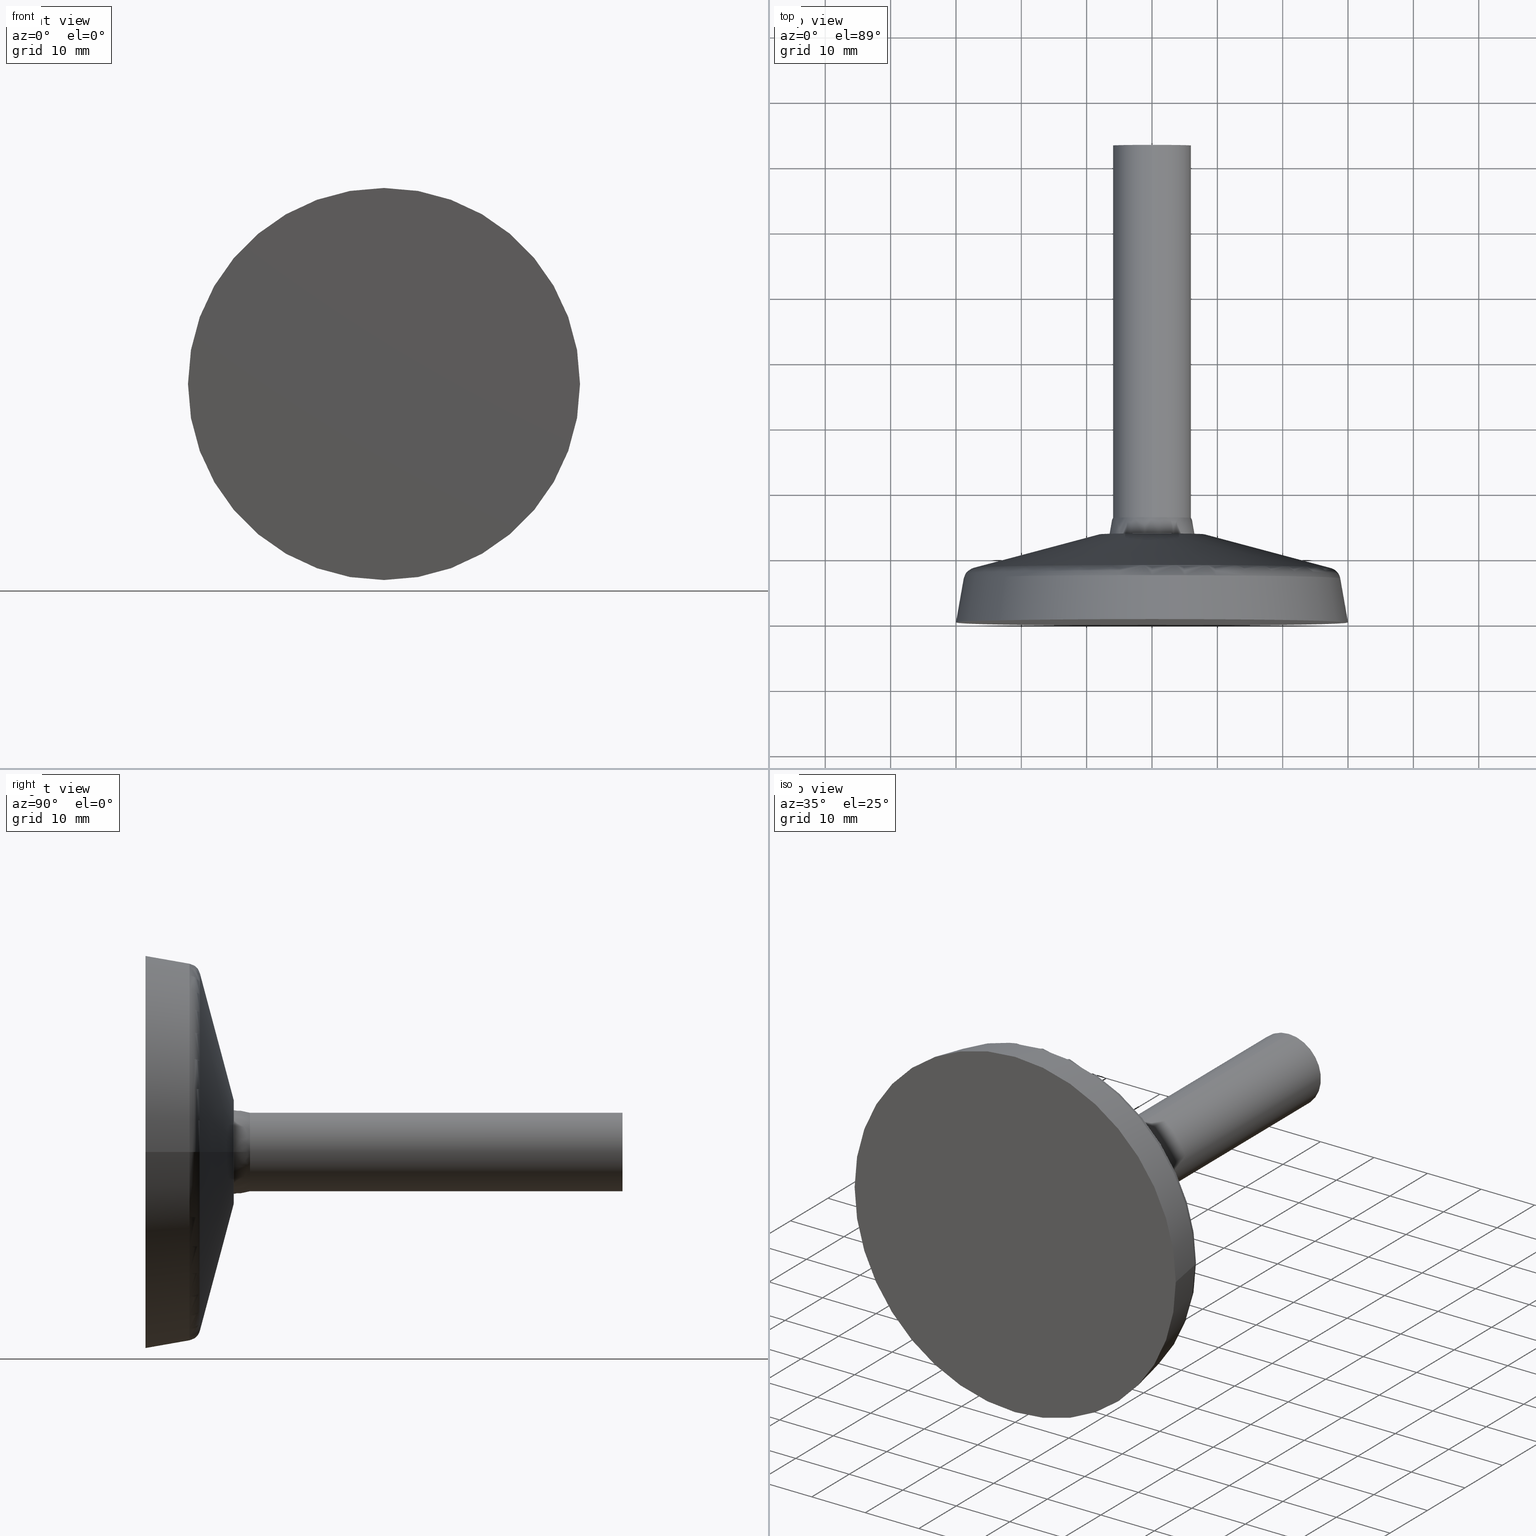
[diagram: canonical four-view strip — front | top / right | iso, engineering-drawing reading convention]
A machine part, canonical four-view strip (front | top / right | iso — engineering-drawing reading convention). The complete STEP part file that produces these views, byte-faithful:
ISO-10303-21;
HEADER;
/* Generated by software containing ST-Developer
 * from STEP Tools, Inc. (www.steptools.com) 
 */

FILE_DESCRIPTION(
/* description */ (''),
/* implementation_level */ '2;1');

FILE_NAME(
/* name */ 
'Q:\\Catalogo\\2_Accessori Dierre\\Per Download Web e catalogo cartace
o\\CATALOGO PIEDI E SOSTEGNI\\PAGINA 49\\CPDSN0000042.stp',
/* time_stamp */ '2018-12-04T11:11:56+01:00',
/* author */ ('fzagni'),
/* organization */ (''),
/* preprocessor_version */ 'ST-DEVELOPER v16.1',
/* originating_system */ 'Autodesk Inventor 2016',
/* authorisation */ '');

FILE_SCHEMA (('AUTOMOTIVE_DESIGN { 1 0 10303 214 3 1 1 }'));
ENDSEC;

DATA;
#10=MECHANICAL_DESIGN_GEOMETRIC_PRESENTATION_REPRESENTATION('',(#24,#25),
#228);
#11=ITEM_DEFINED_TRANSFORMATION($,$,#121,#142);
#12=ITEM_DEFINED_TRANSFORMATION($,$,#135,#143);
#13=(
REPRESENTATION_RELATIONSHIP($,$,#243,#245)
REPRESENTATION_RELATIONSHIP_WITH_TRANSFORMATION(#11)
SHAPE_REPRESENTATION_RELATIONSHIP()
);
#14=(
REPRESENTATION_RELATIONSHIP($,$,#244,#245)
REPRESENTATION_RELATIONSHIP_WITH_TRANSFORMATION(#12)
SHAPE_REPRESENTATION_RELATIONSHIP()
);
#15=CONTEXT_DEPENDENT_SHAPE_REPRESENTATION(#13,#241);
#16=CONTEXT_DEPENDENT_SHAPE_REPRESENTATION(#14,#242);
#17=NEXT_ASSEMBLY_USAGE_OCCURRENCE('440000006622:1','440000006622:1',
'440000006622:1',#249,#247,'440000006622:1');
#18=NEXT_ASSEMBLY_USAGE_OCCURRENCE('440000006623:1','440000006623:1',
'440000006623:1',#249,#248,'440000006623:1');
#19=CYLINDRICAL_SURFACE('',#136,6.00000000000001);
#20=SHAPE_REPRESENTATION_RELATIONSHIP('SRR','None',#243,#22);
#21=SHAPE_REPRESENTATION_RELATIONSHIP('SRR','None',#244,#23);
#22=ADVANCED_BREP_SHAPE_REPRESENTATION('',(#26),#225);
#23=ADVANCED_BREP_SHAPE_REPRESENTATION('',(#27),#226);
#24=STYLED_ITEM('',(#262),#26);
#25=STYLED_ITEM('',(#263),#27);
#26=MANIFOLD_SOLID_BREP('Solido1',#119);
#27=MANIFOLD_SOLID_BREP('Solido1',#120);
#28=PLANE('',#129);
#29=PLANE('',#134);
#30=PLANE('',#139);
#31=CONICAL_SURFACE('',#127,18.2946920771661,75.0439106804958);
#32=CONICAL_SURFACE('',#132,29.2946920771661,10.);
#33=FACE_BOUND('',#53,.T.);
#34=FACE_BOUND('',#55,.T.);
#35=FACE_BOUND('',#57,.T.);
#36=FACE_BOUND('',#59,.T.);
#37=FACE_BOUND('',#61,.T.);
#38=FACE_BOUND('',#64,.T.);
#39=FACE_BOUND('',#66,.T.);
#40=TOROIDAL_SURFACE('',#124,7.9343686586941,0.5);
#41=TOROIDAL_SURFACE('',#130,26.8412079674655,2.);
#42=FACE_OUTER_BOUND('',#51,.T.);
#43=FACE_OUTER_BOUND('',#52,.T.);
#44=FACE_OUTER_BOUND('',#54,.T.);
#45=FACE_OUTER_BOUND('',#56,.T.);
#46=FACE_OUTER_BOUND('',#58,.T.);
#47=FACE_OUTER_BOUND('',#60,.T.);
#48=FACE_OUTER_BOUND('',#62,.T.);
#49=FACE_OUTER_BOUND('',#63,.T.);
#50=FACE_OUTER_BOUND('',#65,.T.);
#51=EDGE_LOOP('',(#91));
#52=EDGE_LOOP('',(#92));
#53=EDGE_LOOP('',(#93));
#54=EDGE_LOOP('',(#94));
#55=EDGE_LOOP('',(#95));
#56=EDGE_LOOP('',(#96));
#57=EDGE_LOOP('',(#97));
#58=EDGE_LOOP('',(#98));
#59=EDGE_LOOP('',(#99));
#60=EDGE_LOOP('',(#100));
#61=EDGE_LOOP('',(#101));
#62=EDGE_LOOP('',(#102));
#63=EDGE_LOOP('',(#103));
#64=EDGE_LOOP('',(#104));
#65=EDGE_LOOP('',(#105));
#66=EDGE_LOOP('',(#106));
#67=CIRCLE('',#123,6.75);
#68=CIRCLE('',#125,7.9343686586941);
#69=CIRCLE('',#126,8.06340800728572);
#70=CIRCLE('',#128,27.357365361832);
#71=CIRCLE('',#131,28.8108234734899);
#72=CIRCLE('',#133,30.);
#73=CIRCLE('',#137,6.00000000000001);
#74=CIRCLE('',#138,6.);
#75=VERTEX_POINT('',#192);
#76=VERTEX_POINT('',#195);
#77=VERTEX_POINT('',#197);
#78=VERTEX_POINT('',#200);
#79=VERTEX_POINT('',#204);
#80=VERTEX_POINT('',#207);
#81=VERTEX_POINT('',#212);
#82=VERTEX_POINT('',#214);
#83=EDGE_CURVE('',#75,#75,#67,.T.);
#84=EDGE_CURVE('',#76,#76,#68,.T.);
#85=EDGE_CURVE('',#77,#77,#69,.T.);
#86=EDGE_CURVE('',#78,#78,#70,.T.);
#87=EDGE_CURVE('',#79,#79,#71,.T.);
#88=EDGE_CURVE('',#80,#80,#72,.T.);
#89=EDGE_CURVE('',#81,#81,#73,.T.);
#90=EDGE_CURVE('',#82,#82,#74,.T.);
#91=ORIENTED_EDGE('',*,*,#83,.F.);
#92=ORIENTED_EDGE('',*,*,#84,.T.);
#93=ORIENTED_EDGE('',*,*,#85,.T.);
#94=ORIENTED_EDGE('',*,*,#86,.F.);
#95=ORIENTED_EDGE('',*,*,#85,.F.);
#96=ORIENTED_EDGE('',*,*,#84,.F.);
#97=ORIENTED_EDGE('',*,*,#83,.T.);
#98=ORIENTED_EDGE('',*,*,#86,.T.);
#99=ORIENTED_EDGE('',*,*,#87,.T.);
#100=ORIENTED_EDGE('',*,*,#88,.F.);
#101=ORIENTED_EDGE('',*,*,#87,.F.);
#102=ORIENTED_EDGE('',*,*,#88,.T.);
#103=ORIENTED_EDGE('',*,*,#89,.F.);
#104=ORIENTED_EDGE('',*,*,#90,.F.);
#105=ORIENTED_EDGE('',*,*,#90,.T.);
#106=ORIENTED_EDGE('',*,*,#89,.T.);
#107=SPHERICAL_SURFACE('',#122,6.75);
#108=SPHERICAL_SURFACE('',#140,6.5);
#109=ADVANCED_FACE('',(#42),#107,.F.);
#110=ADVANCED_FACE('',(#43,#33),#40,.T.);
#111=ADVANCED_FACE('',(#44,#34),#31,.T.);
#112=ADVANCED_FACE('',(#45,#35),#28,.T.);
#113=ADVANCED_FACE('',(#46,#36),#41,.T.);
#114=ADVANCED_FACE('',(#47,#37),#32,.T.);
#115=ADVANCED_FACE('',(#48),#29,.T.);
#116=ADVANCED_FACE('',(#49,#38),#19,.T.);
#117=ADVANCED_FACE('',(#50),#30,.T.);
#118=ADVANCED_FACE('',(#39),#108,.T.);
#119=CLOSED_SHELL('',(#109,#110,#111,#112,#113,#114,#115));
#120=CLOSED_SHELL('',(#116,#117,#118));
#121=AXIS2_PLACEMENT_3D('placement',#190,#144,#145);
#122=AXIS2_PLACEMENT_3D('',#191,#146,#147);
#123=AXIS2_PLACEMENT_3D('',#193,#148,#149);
#124=AXIS2_PLACEMENT_3D('',#194,#150,#151);
#125=AXIS2_PLACEMENT_3D('',#196,#152,#153);
#126=AXIS2_PLACEMENT_3D('',#198,#154,#155);
#127=AXIS2_PLACEMENT_3D('',#199,#156,#157);
#128=AXIS2_PLACEMENT_3D('',#201,#158,#159);
#129=AXIS2_PLACEMENT_3D('',#202,#160,#161);
#130=AXIS2_PLACEMENT_3D('',#203,#162,#163);
#131=AXIS2_PLACEMENT_3D('',#205,#164,#165);
#132=AXIS2_PLACEMENT_3D('',#206,#166,#167);
#133=AXIS2_PLACEMENT_3D('',#208,#168,#169);
#134=AXIS2_PLACEMENT_3D('',#209,#170,#171);
#135=AXIS2_PLACEMENT_3D('placement',#210,#172,#173);
#136=AXIS2_PLACEMENT_3D('',#211,#174,#175);
#137=AXIS2_PLACEMENT_3D('',#213,#176,#177);
#138=AXIS2_PLACEMENT_3D('',#215,#178,#179);
#139=AXIS2_PLACEMENT_3D('',#216,#180,#181);
#140=AXIS2_PLACEMENT_3D('',#217,#182,#183);
#141=AXIS2_PLACEMENT_3D('placement',#218,#184,#185);
#142=AXIS2_PLACEMENT_3D('',#219,#186,#187);
#143=AXIS2_PLACEMENT_3D('',#220,#188,#189);
#144=DIRECTION('axis',(0.,0.,1.));
#145=DIRECTION('refdir',(1.,0.,0.));
#146=DIRECTION('center_axis',(1.,-6.12323399573677E-17,0.));
#147=DIRECTION('ref_axis',(0.,-1.,0.));
#148=DIRECTION('center_axis',(-1.,0.,0.));
#149=DIRECTION('ref_axis',(0.,0.,1.));
#150=DIRECTION('center_axis',(-1.,0.,0.));
#151=DIRECTION('ref_axis',(0.,0.,1.));
#152=DIRECTION('center_axis',(-1.,0.,0.));
#153=DIRECTION('ref_axis',(0.,1.22464679914735E-16,-1.));
#154=DIRECTION('center_axis',(1.,0.,0.));
#155=DIRECTION('ref_axis',(0.,0.,-1.));
#156=DIRECTION('center_axis',(-1.,0.,0.));
#157=DIRECTION('ref_axis',(0.,0.,1.));
#158=DIRECTION('center_axis',(-1.,0.,0.));
#159=DIRECTION('ref_axis',(0.,0.,-1.));
#160=DIRECTION('center_axis',(1.,0.,0.));
#161=DIRECTION('ref_axis',(0.,0.,-1.));
#162=DIRECTION('center_axis',(-1.,0.,0.));
#163=DIRECTION('ref_axis',(0.,0.,1.));
#164=DIRECTION('center_axis',(1.,0.,0.));
#165=DIRECTION('ref_axis',(0.,0.,-1.));
#166=DIRECTION('center_axis',(-1.,0.,0.));
#167=DIRECTION('ref_axis',(0.,0.,1.));
#168=DIRECTION('center_axis',(-1.,0.,0.));
#169=DIRECTION('ref_axis',(0.,0.,1.));
#170=DIRECTION('center_axis',(-1.,0.,0.));
#171=DIRECTION('ref_axis',(0.,0.,1.));
#172=DIRECTION('axis',(0.,0.,1.));
#173=DIRECTION('refdir',(1.,0.,0.));
#174=DIRECTION('center_axis',(1.,1.10403764468587E-16,0.));
#175=DIRECTION('ref_axis',(-1.10403764468587E-16,1.,0.));
#176=DIRECTION('center_axis',(-1.,-1.10403764468587E-16,0.));
#177=DIRECTION('ref_axis',(3.70074341541718E-16,1.,0.));
#178=DIRECTION('center_axis',(1.,1.10403764468587E-16,0.));
#179=DIRECTION('ref_axis',(0.,0.,-1.));
#180=DIRECTION('center_axis',(1.,1.10403764468587E-16,0.));
#181=DIRECTION('ref_axis',(0.,0.,-1.));
#182=DIRECTION('center_axis',(0.,0.,1.));
#183=DIRECTION('ref_axis',(1.,0.,0.));
#184=DIRECTION('axis',(0.,0.,1.));
#185=DIRECTION('refdir',(1.,0.,0.));
#186=DIRECTION('',(1.,0.,0.));
#187=DIRECTION('',(0.,1.,0.));
#188=DIRECTION('',(1.,0.,0.));
#189=DIRECTION('',(0.,1.,0.));
#190=CARTESIAN_POINT('',(0.,0.,0.));
#191=CARTESIAN_POINT('Origin',(13.5,-9.92987622506088E-16,0.));
#192=CARTESIAN_POINT('',(13.5,-1.81962421193055E-15,-6.75));
#193=CARTESIAN_POINT('Origin',(13.5,-9.92987622506088E-16,0.));
#194=CARTESIAN_POINT('Origin',(13.,0.,0.));
#195=CARTESIAN_POINT('',(13.5,0.,7.9343686586941));
#196=CARTESIAN_POINT('Origin',(13.5,0.,0.));
#197=CARTESIAN_POINT('',(13.4830619489414,-1.97496536126832E-15,8.06340800728572));
#198=CARTESIAN_POINT('Origin',(13.4830619489414,-9.8748268063416E-16,0.));
#199=CARTESIAN_POINT('Origin',(10.75,0.,0.));
#200=CARTESIAN_POINT('',(8.32910665554443,0.,27.357365361832));
#201=CARTESIAN_POINT('Origin',(8.32910665554443,-3.35031099234722E-15,0.));
#202=CARTESIAN_POINT('Origin',(13.5,0.,8.));
#203=CARTESIAN_POINT('Origin',(6.39685885977888,0.,0.));
#204=CARTESIAN_POINT('',(6.74415521511274,-7.05661654952177E-15,28.8108234734899));
#205=CARTESIAN_POINT('Origin',(6.74415521511274,-3.52830827476089E-15,0.));
#206=CARTESIAN_POINT('Origin',(4.,0.,0.));
#207=CARTESIAN_POINT('',(5.51091059616309E-15,0.,30.));
#208=CARTESIAN_POINT('Origin',(4.44089209850063E-15,0.,0.));
#209=CARTESIAN_POINT('Origin',(0.,0.,0.));
#210=CARTESIAN_POINT('',(0.,0.,0.));
#211=CARTESIAN_POINT('Origin',(44.5,3.82593856239264E-15,0.));
#212=CARTESIAN_POINT('',(16.,6.00000000000002,0.));
#213=CARTESIAN_POINT('Origin',(16.,6.79431275037904E-16,0.));
#214=CARTESIAN_POINT('',(73.,6.00000000000001,0.));
#215=CARTESIAN_POINT('Origin',(73.,6.97244584974738E-15,0.));
#216=CARTESIAN_POINT('Origin',(73.,6.97244584974738E-15,0.));
#217=CARTESIAN_POINT('Origin',(13.5,-1.11022302462516E-15,0.));
#218=CARTESIAN_POINT('',(0.,0.,0.));
#219=CARTESIAN_POINT('',(0.,0.,0.));
#220=CARTESIAN_POINT('',(0.,0.,0.));
#221=UNCERTAINTY_MEASURE_WITH_UNIT(LENGTH_MEASURE(0.01),#229,
'DISTANCE_ACCURACY_VALUE',
'Maximum model space distance between geometric entities at asserted c
onnectivities');
#222=UNCERTAINTY_MEASURE_WITH_UNIT(LENGTH_MEASURE(0.01),#229,
'DISTANCE_ACCURACY_VALUE',
'Maximum model space distance between geometric entities at asserted c
onnectivities');
#223=UNCERTAINTY_MEASURE_WITH_UNIT(LENGTH_MEASURE(0.01),#229,
'DISTANCE_ACCURACY_VALUE',
'Maximum model space distance between geometric entities at asserted c
onnectivities');
#224=UNCERTAINTY_MEASURE_WITH_UNIT(LENGTH_MEASURE(1.E-6),#229,
'DISTANCE_ACCURACY_VALUE',
'Maximum model space distance between geometric entities at asserted c
onnectivities');
#225=(
GEOMETRIC_REPRESENTATION_CONTEXT(3)
GLOBAL_UNCERTAINTY_ASSIGNED_CONTEXT((#221))
GLOBAL_UNIT_ASSIGNED_CONTEXT((#229,#232,#230))
REPRESENTATION_CONTEXT('','3D')
);
#226=(
GEOMETRIC_REPRESENTATION_CONTEXT(3)
GLOBAL_UNCERTAINTY_ASSIGNED_CONTEXT((#222))
GLOBAL_UNIT_ASSIGNED_CONTEXT((#229,#232,#230))
REPRESENTATION_CONTEXT('','3D')
);
#227=(
GEOMETRIC_REPRESENTATION_CONTEXT(3)
GLOBAL_UNCERTAINTY_ASSIGNED_CONTEXT((#223))
GLOBAL_UNIT_ASSIGNED_CONTEXT((#229,#232,#230))
REPRESENTATION_CONTEXT('','3D')
);
#228=(
GEOMETRIC_REPRESENTATION_CONTEXT(3)
GLOBAL_UNCERTAINTY_ASSIGNED_CONTEXT((#224))
GLOBAL_UNIT_ASSIGNED_CONTEXT((#229,#232,#230))
REPRESENTATION_CONTEXT('','3D')
);
#229=(
LENGTH_UNIT()
NAMED_UNIT(*)
SI_UNIT(.MILLI.,.METRE.)
);
#230=(
NAMED_UNIT(*)
SI_UNIT($,.STERADIAN.)
SOLID_ANGLE_UNIT()
);
#231=DIMENSIONAL_EXPONENTS(0.,0.,0.,0.,0.,0.,0.);
#232=(
CONVERSION_BASED_UNIT('degree',#234)
NAMED_UNIT(#231)
PLANE_ANGLE_UNIT()
);
#233=(
NAMED_UNIT(*)
PLANE_ANGLE_UNIT()
SI_UNIT($,.RADIAN.)
);
#234=PLANE_ANGLE_MEASURE_WITH_UNIT(PLANE_ANGLE_MEASURE(0.01745329252),#233);
#235=SHAPE_DEFINITION_REPRESENTATION(#238,#243);
#236=SHAPE_DEFINITION_REPRESENTATION(#239,#244);
#237=SHAPE_DEFINITION_REPRESENTATION(#240,#245);
#238=PRODUCT_DEFINITION_SHAPE('',$,#247);
#239=PRODUCT_DEFINITION_SHAPE('',$,#248);
#240=PRODUCT_DEFINITION_SHAPE('',$,#249);
#241=PRODUCT_DEFINITION_SHAPE($,$,#17);
#242=PRODUCT_DEFINITION_SHAPE($,$,#18);
#243=SHAPE_REPRESENTATION('',(#121),#225);
#244=SHAPE_REPRESENTATION('',(#135),#226);
#245=SHAPE_REPRESENTATION('',(#141,#142,#143),#227);
#246=PRODUCT_DEFINITION_CONTEXT('part definition',#257,'design');
#247=PRODUCT_DEFINITION('440000006622','440000006622',#250,#246);
#248=PRODUCT_DEFINITION('440000006623','440000006623',#251,#246);
#249=PRODUCT_DEFINITION('440000006620','440000006620',#252,#246);
#250=PRODUCT_DEFINITION_FORMATION('','A',#259);
#251=PRODUCT_DEFINITION_FORMATION('','A',#260);
#252=PRODUCT_DEFINITION_FORMATION('','A',#261);
#253=PRODUCT_RELATED_PRODUCT_CATEGORY('440000006622','440000006622',(#259));
#254=PRODUCT_RELATED_PRODUCT_CATEGORY('440000006623','440000006623',(#260));
#255=PRODUCT_RELATED_PRODUCT_CATEGORY('440000006620','440000006620',(#261));
#256=APPLICATION_PROTOCOL_DEFINITION('international standard',
'automotive_design',2009,#257);
#257=APPLICATION_CONTEXT(
'Core Data for Automotive Mechanical Design Process');
#258=PRODUCT_CONTEXT('part definition',#257,'mechanical');
#259=PRODUCT('440000006622','440000006622',$,(#258));
#260=PRODUCT('440000006623','440000006623',$,(#258));
#261=PRODUCT('440000006620','440000006620',$,(#258));
#262=PRESENTATION_STYLE_ASSIGNMENT((#264));
#263=PRESENTATION_STYLE_ASSIGNMENT((#265));
#264=SURFACE_STYLE_USAGE(.BOTH.,#266);
#265=SURFACE_STYLE_USAGE(.BOTH.,#267);
#266=SURFACE_SIDE_STYLE('',(#268));
#267=SURFACE_SIDE_STYLE('',(#269));
#268=SURFACE_STYLE_FILL_AREA(#270);
#269=SURFACE_STYLE_FILL_AREA(#271);
#270=FILL_AREA_STYLE('',(#272));
#271=FILL_AREA_STYLE('',(#273));
#272=FILL_AREA_STYLE_COLOUR('',#274);
#273=FILL_AREA_STYLE_COLOUR('',#275);
#274=COLOUR_RGB('',0.250980392156863,0.250980392156863,0.250980392156863);
#275=COLOUR_RGB('',0.83921568627451,0.886274509803922,0.854901960784314);
ENDSEC;
END-ISO-10303-21;
